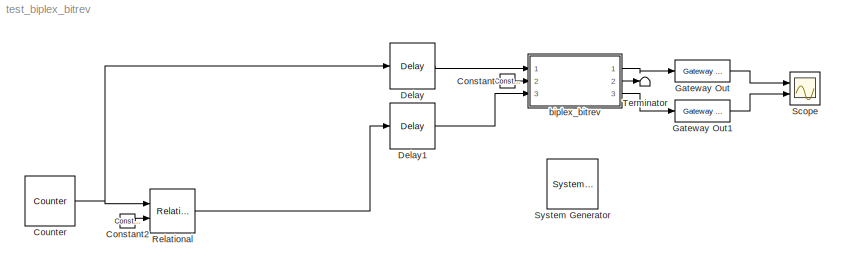
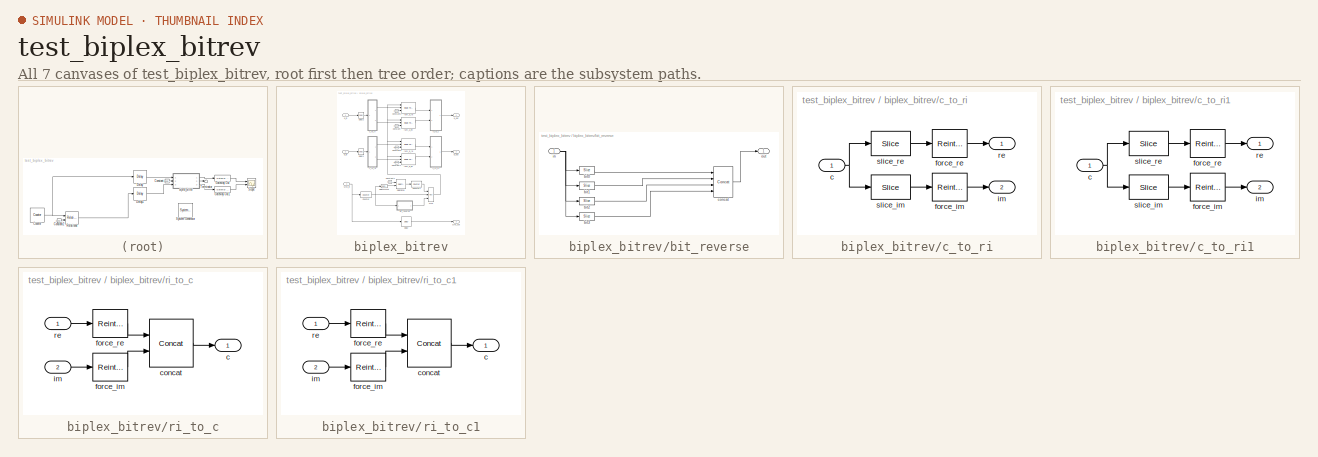
[diagram: thumbnail index - all 7 canvases of the model, root first then tree order]
MODEL test_biplex_bitrev
KIND model
BLOCK [Reference]  System Generator  REF=xbsIndex_r3/ System Generator
  AttributesFormatString = System\\nGenerator
  Ports = []
  ShowPortLabels = on
  SourceBlock = xbsIndex_r3/ System Generator
  SourceType = Xilinx System Generator
  Tag = genX
  UserData = DataTag0
  UserDataPersistent = on
  core_generation = According to Block Masks
  dbl_ovrd = According to Block Masks
  deprecated_control = off
  directory = ./netlist
  eval_field = 0
  incr_netlist = off
  package = bg575
  part = xc2v1000
  run_coregen = off
  simulink_period = 1
  speed = -4
  synthesis_tool = XST
  sysclk_period = 100
  testbench = off
  trim_vbits = Everywhere in SubSystem
  xilinxfamily = Virtex2
BLOCK [Reference] Constant  REF=xbsIndex_r3/Constant
  Ports = [0, 1]
  SourceBlock = xbsIndex_r3/Constant
  SourceType = Xilinx Constant Block
  arith_type = Unsigned
  bin_pt = 0
  carry = CIN
  const = 0
  dbl_ovrd = off
  equ = P=C
  explicit_period = on
  inp1 = P
  inp2 = PCIN>>17
  iostate = 0
  n_bits = 8
  opr = +
  opselect = C
  period = 1
BLOCK [Reference] Constant2  REF=xbsIndex_r3/Constant
  Ports = [0, 1]
  SourceBlock = xbsIndex_r3/Constant
  SourceType = Xilinx Constant Block
  arith_type = Unsigned
  bin_pt = 0
  carry = CIN
  const = 0
  dbl_ovrd = off
  equ = P=C
  explicit_period = on
  inp1 = P
  inp2 = PCIN>>17
  iostate = 0
  n_bits = 8
  opr = +
  opselect = C
  period = 1
BLOCK [Reference] Counter  REF=xbsIndex_r3/Counter
  Ports = [0, 1]
  SourceBlock = xbsIndex_r3/Counter
  SourceType = Xilinx Counter Block
  arith_type = Unsigned
  bin_pt = 0
  cnt_by_val = 1
  cnt_to = 15
  cnt_type = Count Limited
  dbl_ovrd = off
  en = off
  explicit_period = off
  gen_core = off
  load_pin = off
  n_bits = 8
  operation = Up
  period = 1
  rst = off
  show_param = off
  start_count = 0
  use_rpm = on
  xl_area = [0, 0, 0, 0, 0, 0, 0]
  xl_use_area = off
BLOCK [Reference] Delay  REF=xbsIndex_r3/Delay
  Ports = [1, 1]
  SourceBlock = xbsIndex_r3/Delay
  SourceType = Xilinx Delay Block
  accept_only_valid = off
  dbl_ovrd = off
  en = off
  explicit_period = off
  init_zero = on
  latency = 1
  period = 1
  reg_retiming = off
  show_param = off
  xl_area = [0, 0, 0, 0, 0, 0, 0]
  xl_use_area = off
BLOCK [Reference] Delay1  REF=xbsIndex_r3/Delay
  Ports = [1, 1]
  SourceBlock = xbsIndex_r3/Delay
  SourceType = Xilinx Delay Block
  accept_only_valid = off
  dbl_ovrd = off
  en = off
  explicit_period = off
  init_zero = on
  latency = 0
  period = 1
  reg_retiming = off
  show_param = off
  xl_area = [0, 0, 0, 0, 0, 0, 0]
  xl_use_area = off
BLOCK [Reference] Gateway Out  REF=xbsIndex_r3/Gateway Out
  LOCs = {}
  Ports = [1, 1]
  SourceBlock = xbsIndex_r3/Gateway Out
  SourceType = Xilinx Gateway Out
  arith_type = Boolean
  bin_pt = 6
  hdl_port = on
  locs_specified = off
  nbits = 8
  needs_fixed_name = off
  output_type = Double
  overflow = Wrap
  quantization = Truncate
  show_param = off
  timing_constraint = None
  xl_area = [0, 0, 0, 0, 0, 0, 0]
  xl_use_area = off
BLOCK [Reference] Gateway Out1  REF=xbsIndex_r3/Gateway Out
  LOCs = {}
  Ports = [1, 1]
  SourceBlock = xbsIndex_r3/Gateway Out
  SourceType = Xilinx Gateway Out
  arith_type = Boolean
  bin_pt = 6
  hdl_port = on
  locs_specified = off
  nbits = 8
  needs_fixed_name = off
  output_type = Double
  overflow = Wrap
  quantization = Truncate
  show_param = off
  timing_constraint = None
  xl_area = [0, 0, 0, 0, 0, 0, 0]
  xl_use_area = off
BLOCK [Reference] Relational  REF=xbsIndex_r3/Relational
  Ports = [2, 1]
  SourceBlock = xbsIndex_r3/Relational
  SourceType = Xilinx Relational Block
  dbl_ovrd = off
  en = off
  explicit_period = off
  latency = 0
  mode = a=b
  period = 1
  show_param = off
  xl_area = [0, 0, 0, 0, 0, 0, 0]
  xl_use_area = off
BLOCK [Scope] Scope
  DataFormat = StructureWithTime
  NumInputPorts = 2
  Ports = [2]
  YMax = 7~5
  YMin = 0~-5
BLOCK [Terminator] Terminator
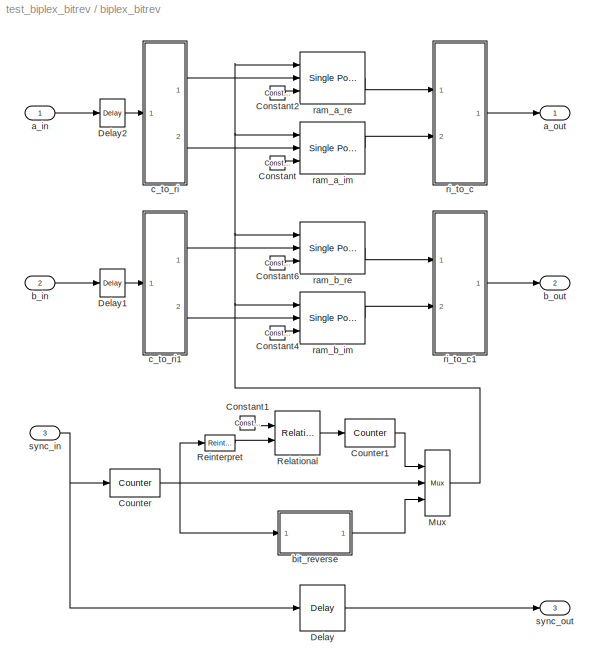
BLOCK [SubSystem] biplex_bitrev
  AttributesFormatString = size = 16
  MaskCallbackString = |
  MaskDescription = Reorders the input sequence from normal order to bit reverse order (or vise versa).
  MaskEnableString = on,on
  MaskHelp = <pre>\nDescription::\n\nReorders the input sequence from normal order to bit reverse order (or vise versa).\n\nMask Parameters::\n\nLog 2 Block Size (log2_size): The base-2 logarithm of the length of one complete input block.\nThis MUST be an integer because the current implementation requires that\nthe input block size MUST be a power of 2.  (aka \"N\")\n\nNumber of Bits (n_bits): Specifies the w...<+89ch>
  MaskIconFrame = on
  MaskIconOpaque = on
  MaskIconRotate = none
  MaskIconUnits = autoscale
  MaskInitialization = biplex_bitrev_init(gcb,log2_size,n_bits);\n
  MaskPromptString = Log2 Block Size|Number of Bits
  MaskSelfModifiable = on
  MaskStyleString = edit,edit
  MaskTabNameString = ,
  MaskToolTipString = on,on
  MaskTunableValueString = on,on
  MaskType = Biplex Bit Reverse Reorder
  MaskValueString = 4|4
  MaskVarAliasString = ,
  MaskVariables = log2_size=@1;n_bits=@2;
  MaskVisibilityString = on,on
  MinAlgLoopOccurrences = off
  Ports = [3, 3]
  RTWSystemCode = Auto
  TreatAsAtomicUnit = off
  UserData = DataTag1
  UserDataPersistent = on
BLOCK [Reference] biplex_bitrev/Constant  REF=xbsIndex_r3/Constant
  Ports = [0, 1]
  SourceBlock = xbsIndex_r3/Constant
  SourceType = Xilinx Constant Block
  arith_type = Boolean
  bin_pt = 0
  carry = CIN
  const = 1
  dbl_ovrd = off
  equ = P=C
  explicit_period = on
  inp1 = P
  inp2 = PCIN>>17
  iostate = 0
  n_bits = 1
  opr = +
  opselect = C
  period = 1
BLOCK [Reference] biplex_bitrev/Constant1  REF=xbsIndex_r3/Constant
  Ports = [0, 1]
  SourceBlock = xbsIndex_r3/Constant
  SourceType = Xilinx Constant Block
  arith_type = Signed  (2's comp)
  bin_pt = 0
  carry = CIN
  const = -1
  dbl_ovrd = off
  equ = P=C
  explicit_period = on
  inp1 = P
  inp2 = PCIN>>17
  iostate = 0
  n_bits = 1
  opr = +
  opselect = C
  period = 1
BLOCK [Reference] biplex_bitrev/Constant2  REF=xbsIndex_r3/Constant
  Ports = [0, 1]
  SourceBlock = xbsIndex_r3/Constant
  SourceType = Xilinx Constant Block
  arith_type = Boolean
  bin_pt = 0
  carry = CIN
  const = 1
  dbl_ovrd = off
  equ = P=C
  explicit_period = on
  inp1 = P
  inp2 = PCIN>>17
  iostate = 0
  n_bits = 1
  opr = +
  opselect = C
  period = 1
BLOCK [Reference] biplex_bitrev/Constant4  REF=xbsIndex_r3/Constant
  Ports = [0, 1]
  SourceBlock = xbsIndex_r3/Constant
  SourceType = Xilinx Constant Block
  arith_type = Boolean
  bin_pt = 0
  carry = CIN
  const = 1
  dbl_ovrd = off
  equ = P=C
  explicit_period = on
  inp1 = P
  inp2 = PCIN>>17
  iostate = 0
  n_bits = 1
  opr = +
  opselect = C
  period = 1
BLOCK [Reference] biplex_bitrev/Constant6  REF=xbsIndex_r3/Constant
  Ports = [0, 1]
  SourceBlock = xbsIndex_r3/Constant
  SourceType = Xilinx Constant Block
  arith_type = Boolean
  bin_pt = 0
  carry = CIN
  const = 1
  dbl_ovrd = off
  equ = P=C
  explicit_period = on
  inp1 = P
  inp2 = PCIN>>17
  iostate = 0
  n_bits = 1
  opr = +
  opselect = C
  period = 1
BLOCK [Reference] biplex_bitrev/Counter  REF=xbsIndex_r3/Counter
  Ports = [1, 1]
  SourceBlock = xbsIndex_r3/Counter
  SourceType = Xilinx Counter Block
  arith_type = Unsigned
  bin_pt = 0
  cnt_by_val = 1
  cnt_to = Inf
  cnt_type = Free Running
  dbl_ovrd = off
  en = off
  explicit_period = off
  gen_core = off
  load_pin = off
  n_bits = 4
  operation = Up
  period = 1
  rst = on
  show_param = off
  start_count = 0
  use_rpm = on
  xl_area = [0, 0, 0, 0, 0, 0, 0]
  xl_use_area = off
BLOCK [Reference] biplex_bitrev/Counter1  REF=xbsIndex_r3/Counter
  Ports = [1, 1]
  SourceBlock = xbsIndex_r3/Counter
  SourceType = Xilinx Counter Block
  arith_type = Unsigned
  bin_pt = 0
  cnt_by_val = 1
  cnt_to = Inf
  cnt_type = Free Running
  dbl_ovrd = off
  en = on
  explicit_period = off
  gen_core = off
  load_pin = off
  n_bits = 1
  operation = Up
  period = 1
  rst = off
  show_param = off
  start_count = 0
  use_rpm = on
  xl_area = [0, 0, 0, 0, 0, 0, 0]
  xl_use_area = off
BLOCK [Reference] biplex_bitrev/Delay  REF=xbsIndex_r3/Delay
  Ports = [1, 1]
  SourceBlock = xbsIndex_r3/Delay
  SourceType = Xilinx Delay Block
  accept_only_valid = off
  dbl_ovrd = off
  en = off
  explicit_period = off
  init_zero = on
  latency = 18
  period = 1
  reg_retiming = off
  show_param = off
  xl_area = [0, 0, 0, 0, 0, 0, 0]
  xl_use_area = off
BLOCK [Reference] biplex_bitrev/Delay1  REF=xbsIndex_r3/Delay
  Ports = [1, 1]
  SourceBlock = xbsIndex_r3/Delay
  SourceType = Xilinx Delay Block
  accept_only_valid = off
  dbl_ovrd = off
  en = off
  explicit_period = off
  init_zero = on
  latency = 1
  period = 1
  reg_retiming = off
  show_param = off
  xl_area = [0, 0, 0, 0, 0, 0, 0]
  xl_use_area = off
BLOCK [Reference] biplex_bitrev/Delay2  REF=xbsIndex_r3/Delay
  Ports = [1, 1]
  SourceBlock = xbsIndex_r3/Delay
  SourceType = Xilinx Delay Block
  accept_only_valid = off
  dbl_ovrd = off
  en = off
  explicit_period = off
  init_zero = on
  latency = 1
  period = 1
  reg_retiming = off
  show_param = off
  xl_area = [0, 0, 0, 0, 0, 0, 0]
  xl_use_area = off
BLOCK [Reference] biplex_bitrev/Mux  REF=xbsIndex_r3/Mux
  Ports = [3, 1]
  SourceBlock = xbsIndex_r3/Mux
  SourceType = Xilinx Multiplexer Block
  arith_type = Signed  (2's comp)
  bin_pt = 2
  dbl_ovrd = off
  en = off
  explicit_period = off
  gen_core = off
  inputs = 2
  latency = 1
  mux_type = off
  n_bits = 8
  overflow = Wrap
  period = 1
  precision = Full
  quantization = Truncate
  show_param = off
  use_rpm = off
  xl_area = [0, 0, 0, 0, 0, 0, 0]
  xl_use_area = off
BLOCK [Reference] biplex_bitrev/Reinterpret  REF=xbsIndex_r3/Reinterpret
  Ports = [1, 1]
  SourceBlock = xbsIndex_r3/Reinterpret
  SourceType = Xilinx Type Reinterpreting Block
  arith_type = Signed  (2's comp)
  bin_pt = 0
  force_arith_type = on
  force_bin_pt = off
  force_valid = on
BLOCK [Reference] biplex_bitrev/Relational  REF=xbsIndex_r3/Relational
  Ports = [2, 1]
  SourceBlock = xbsIndex_r3/Relational
  SourceType = Xilinx Relational Block
  dbl_ovrd = off
  en = off
  explicit_period = off
  latency = 1
  mode = a=b
  period = 1
  show_param = off
  xl_area = [0, 0, 0, 0, 0, 0, 0]
  xl_use_area = off
BLOCK [Inport] biplex_bitrev/a_in
  IconDisplay = Port number
  LatchInput = off
  Port = 1
BLOCK [Outport] biplex_bitrev/a_out
  BusOutputAsStruct = off
  IconDisplay = Port number
BLOCK [Inport] biplex_bitrev/b_in
  IconDisplay = Port number
  LatchInput = off
  Port = 2
BLOCK [Outport] biplex_bitrev/b_out
  BusOutputAsStruct = off
  IconDisplay = Port number
  Port = 2
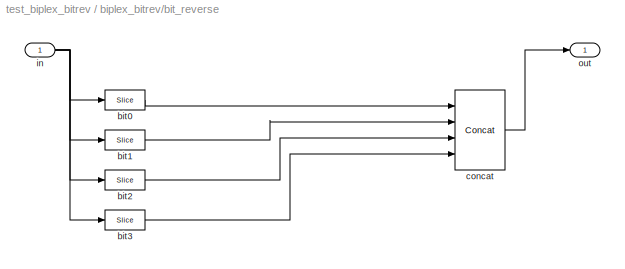
BLOCK [SubSystem] biplex_bitrev/bit_reverse
  AttributesFormatString = 4 bits
  MaskDescription = Reverses the bit order of the input.  Input must be unsigned with binary point at position 0.  Costs nothing in hardware.
  MaskEnableString = on
  MaskHelp = <pre>\nDescription::\n\nReverses the bit order of the input.\n\nInput must be unsigned with binary point at position 0.\n\nCosts nothing in hardware.\n\nMask Parameters::\n\nNumber of Bits (n_bits): Specifies the width of the input.\n</pre>
  MaskIconFrame = on
  MaskIconOpaque = on
  MaskIconRotate = none
  MaskIconUnits = autoscale
  MaskPromptString = Number of Bits
  MaskSelfModifiable = on
  MaskStyleString = edit
  MaskToolTipString = on
  MaskTunableValueString = on
  MaskType = Bit Reversal
  MaskValueString = 4
  MaskVariables = n_bits=@1;
  MaskVisibilityString = on
  MinAlgLoopOccurrences = off
  Ports = [1, 1]
  RTWSystemCode = Auto
  TreatAsAtomicUnit = off
  UserData = DataTag2
  UserDataPersistent = on
BLOCK [Reference] biplex_bitrev/bit_reverse/bit0  REF=xbsIndex_r3/Slice
  Ports = [1, 1]
  SourceBlock = xbsIndex_r3/Slice
  SourceType = Xilinx Slice Block
  base0 = LSB of Input
  base1 = MSB of Input
  bit0 = 0
  bit1 = 0
  boolean_output = off
  dbl_ovrd = off
  explicit_period = off
  mode = Lower Bit Location + Width
  nbits = 1
  period = 1
BLOCK [Reference] biplex_bitrev/bit_reverse/bit1  REF=xbsIndex_r3/Slice
  Ports = [1, 1]
  SourceBlock = xbsIndex_r3/Slice
  SourceType = Xilinx Slice Block
  base0 = LSB of Input
  base1 = MSB of Input
  bit0 = 1
  bit1 = 0
  boolean_output = off
  dbl_ovrd = off
  explicit_period = off
  mode = Lower Bit Location + Width
  nbits = 1
  period = 1
BLOCK [Reference] biplex_bitrev/bit_reverse/bit2  REF=xbsIndex_r3/Slice
  Ports = [1, 1]
  SourceBlock = xbsIndex_r3/Slice
  SourceType = Xilinx Slice Block
  base0 = LSB of Input
  base1 = MSB of Input
  bit0 = 2
  bit1 = 0
  boolean_output = off
  dbl_ovrd = off
  explicit_period = off
  mode = Lower Bit Location + Width
  nbits = 1
  period = 1
BLOCK [Reference] biplex_bitrev/bit_reverse/bit3  REF=xbsIndex_r3/Slice
  Ports = [1, 1]
  SourceBlock = xbsIndex_r3/Slice
  SourceType = Xilinx Slice Block
  base0 = LSB of Input
  base1 = MSB of Input
  bit0 = 3
  bit1 = 0
  boolean_output = off
  dbl_ovrd = off
  explicit_period = off
  mode = Lower Bit Location + Width
  nbits = 1
  period = 1
BLOCK [Reference] biplex_bitrev/bit_reverse/concat  REF=xbsIndex_r3/Concat
  Ports = [4, 1]
  SourceBlock = xbsIndex_r3/Concat
  SourceType = Xilinx Bus Concatenator
  dbl_ovrd = off
  explicit_period = off
  num_inputs = 4
  period = 1
BLOCK [Inport] biplex_bitrev/bit_reverse/in
  IconDisplay = Port number
  LatchInput = off
  Port = 1
BLOCK [Outport] biplex_bitrev/bit_reverse/out
  BusOutputAsStruct = off
  IconDisplay = Port number
BLOCK [SubSystem] biplex_bitrev/c_to_ri
  AttributesFormatString = %<n_bits>_%<bin_pt> r/i
  MaskCallbackString = |
  MaskDescription = Outputs real and imaginary components of a complex input.
  MaskEnableString = on,on
  MaskHelp = <pre>\nDescription::\n\nOutputs real and imaginary components of a complex input.\nUseful for simplifying interconnects.\nSee also: Real-Imag to Complex (ri_to_c)\n\nMask Parameters::\n\nBit Width (n_bits): Specifies the width of the real/imaginary components.\nAssumed equal for both components.\n\nBinary Point (bin_pt): Specifies the binary point location in the real/imaginary components.\nAssume...<+36ch>
  MaskIconFrame = on
  MaskIconOpaque = on
  MaskIconRotate = none
  MaskIconUnits = autoscale
  MaskInitialization = c_to_ri_init(gcb,n_bits,bin_pt);
  MaskPromptString = Bit Width|Binary Point
  MaskSelfModifiable = on
  MaskStyleString = edit,edit
  MaskTabNameString = ,
  MaskToolTipString = on,on
  MaskTunableValueString = on,on
  MaskType = Complex to Real-Imag
  MaskValueString = 4|0
  MaskVarAliasString = ,
  MaskVariables = n_bits=@1;bin_pt=@2;
  MaskVisibilityString = on,on
  MinAlgLoopOccurrences = off
  Ports = [1, 2]
  RTWSystemCode = Auto
  TreatAsAtomicUnit = off
  UserData = DataTag3
  UserDataPersistent = on
BLOCK [Inport] biplex_bitrev/c_to_ri/c
  IconDisplay = Port number
  LatchInput = off
  Port = 1
BLOCK [Reference] biplex_bitrev/c_to_ri/force_im  REF=xbsIndex_r3/Reinterpret
  Ports = [1, 1]
  SourceBlock = xbsIndex_r3/Reinterpret
  SourceType = Xilinx Type Reinterpreting Block
  arith_type = Signed  (2's comp)
  bin_pt = 0
  force_arith_type = on
  force_bin_pt = on
  force_valid = on
BLOCK [Reference] biplex_bitrev/c_to_ri/force_re  REF=xbsIndex_r3/Reinterpret
  Ports = [1, 1]
  SourceBlock = xbsIndex_r3/Reinterpret
  SourceType = Xilinx Type Reinterpreting Block
  arith_type = Signed  (2's comp)
  bin_pt = 0
  force_arith_type = on
  force_bin_pt = on
  force_valid = on
BLOCK [Outport] biplex_bitrev/c_to_ri/im
  BusOutputAsStruct = off
  IconDisplay = Port number
  Port = 2
BLOCK [Outport] biplex_bitrev/c_to_ri/re
  BusOutputAsStruct = off
  IconDisplay = Port number
BLOCK [Reference] biplex_bitrev/c_to_ri/slice_im  REF=xbsIndex_r3/Slice
  Ports = [1, 1]
  SourceBlock = xbsIndex_r3/Slice
  SourceType = Xilinx Slice Block
  base0 = LSB of Input
  base1 = MSB of Input
  bit0 = 0
  bit1 = 0
  boolean_output = off
  dbl_ovrd = off
  explicit_period = off
  mode = Lower Bit Location + Width
  nbits = 4
  period = 1
BLOCK [Reference] biplex_bitrev/c_to_ri/slice_re  REF=xbsIndex_r3/Slice
  Ports = [1, 1]
  SourceBlock = xbsIndex_r3/Slice
  SourceType = Xilinx Slice Block
  base0 = LSB of Input
  base1 = MSB of Input
  bit0 = 0
  bit1 = 0
  boolean_output = off
  dbl_ovrd = off
  explicit_period = off
  mode = Upper Bit Location + Width
  nbits = 4
  period = 1
BLOCK [SubSystem] biplex_bitrev/c_to_ri1
  AttributesFormatString = %<n_bits>_%<bin_pt> r/i
  MaskCallbackString = |
  MaskDescription = Outputs real and imaginary components of a complex input.
  MaskEnableString = on,on
  MaskHelp = <pre>\nDescription::\n\nOutputs real and imaginary components of a complex input.\nUseful for simplifying interconnects.\nSee also: Real-Imag to Complex (ri_to_c)\n\nMask Parameters::\n\nBit Width (n_bits): Specifies the width of the real/imaginary components.\nAssumed equal for both components.\n\nBinary Point (bin_pt): Specifies the binary point location in the real/imaginary components.\nAssume...<+36ch>
  MaskIconFrame = on
  MaskIconOpaque = on
  MaskIconRotate = none
  MaskIconUnits = autoscale
  MaskInitialization = c_to_ri_init(gcb,n_bits,bin_pt);
  MaskPromptString = Bit Width|Binary Point
  MaskSelfModifiable = on
  MaskStyleString = edit,edit
  MaskTabNameString = ,
  MaskToolTipString = on,on
  MaskTunableValueString = on,on
  MaskType = Complex to Real-Imag
  MaskValueString = 4|0
  MaskVarAliasString = ,
  MaskVariables = n_bits=@1;bin_pt=@2;
  MaskVisibilityString = on,on
  MinAlgLoopOccurrences = off
  Ports = [1, 2]
  RTWSystemCode = Auto
  TreatAsAtomicUnit = off
  UserData = DataTag4
  UserDataPersistent = on
BLOCK [Inport] biplex_bitrev/c_to_ri1/c
  IconDisplay = Port number
  LatchInput = off
  Port = 1
BLOCK [Reference] biplex_bitrev/c_to_ri1/force_im  REF=xbsIndex_r3/Reinterpret
  Ports = [1, 1]
  SourceBlock = xbsIndex_r3/Reinterpret
  SourceType = Xilinx Type Reinterpreting Block
  arith_type = Signed  (2's comp)
  bin_pt = 0
  force_arith_type = on
  force_bin_pt = on
  force_valid = on
BLOCK [Reference] biplex_bitrev/c_to_ri1/force_re  REF=xbsIndex_r3/Reinterpret
  Ports = [1, 1]
  SourceBlock = xbsIndex_r3/Reinterpret
  SourceType = Xilinx Type Reinterpreting Block
  arith_type = Signed  (2's comp)
  bin_pt = 0
  force_arith_type = on
  force_bin_pt = on
  force_valid = on
BLOCK [Outport] biplex_bitrev/c_to_ri1/im
  BusOutputAsStruct = off
  IconDisplay = Port number
  Port = 2
BLOCK [Outport] biplex_bitrev/c_to_ri1/re
  BusOutputAsStruct = off
  IconDisplay = Port number
BLOCK [Reference] biplex_bitrev/c_to_ri1/slice_im  REF=xbsIndex_r3/Slice
  Ports = [1, 1]
  SourceBlock = xbsIndex_r3/Slice
  SourceType = Xilinx Slice Block
  base0 = LSB of Input
  base1 = MSB of Input
  bit0 = 0
  bit1 = 0
  boolean_output = off
  dbl_ovrd = off
  explicit_period = off
  mode = Lower Bit Location + Width
  nbits = 4
  period = 1
BLOCK [Reference] biplex_bitrev/c_to_ri1/slice_re  REF=xbsIndex_r3/Slice
  Ports = [1, 1]
  SourceBlock = xbsIndex_r3/Slice
  SourceType = Xilinx Slice Block
  base0 = LSB of Input
  base1 = MSB of Input
  bit0 = 0
  bit1 = 0
  boolean_output = off
  dbl_ovrd = off
  explicit_period = off
  mode = Upper Bit Location + Width
  nbits = 4
  period = 1
BLOCK [Reference] biplex_bitrev/ram_a_im  REF=xbsIndex_r3/Single Port RAM
  Ports = [3, 1]
  SourceBlock = xbsIndex_r3/Single Port RAM
  SourceType = Xilinx Single Port Random Access Memory
  dbl_ovrd = off
  depth = 16
  distributed_mem = off
  en = off
  explicit_period = off
  gen_core = off
  initVector = 0
  init_reg = 0
  init_zero = on
  latency = 1
  period = 1
  rst = off
  show_param = on
  use_rpm = off
  write_mode = Read Before Write
  xl_area = [0, 0, 0, 0, 0, 0, 0]
  xl_use_area = off
BLOCK [Reference] biplex_bitrev/ram_a_re  REF=xbsIndex_r3/Single Port RAM
  Ports = [3, 1]
  SourceBlock = xbsIndex_r3/Single Port RAM
  SourceType = Xilinx Single Port Random Access Memory
  dbl_ovrd = off
  depth = 16
  distributed_mem = off
  en = off
  explicit_period = off
  gen_core = off
  initVector = 0
  init_reg = 0
  init_zero = on
  latency = 1
  period = 1
  rst = off
  show_param = on
  use_rpm = off
  write_mode = Read Before Write
  xl_area = [0, 0, 0, 0, 0, 0, 0]
  xl_use_area = off
BLOCK [Reference] biplex_bitrev/ram_b_im  REF=xbsIndex_r3/Single Port RAM
  Ports = [3, 1]
  SourceBlock = xbsIndex_r3/Single Port RAM
  SourceType = Xilinx Single Port Random Access Memory
  dbl_ovrd = off
  depth = 16
  distributed_mem = off
  en = off
  explicit_period = off
  gen_core = off
  initVector = 0
  init_reg = 0
  init_zero = on
  latency = 1
  period = 1
  rst = off
  show_param = on
  use_rpm = off
  write_mode = Read Before Write
  xl_area = [0, 0, 0, 0, 0, 0, 0]
  xl_use_area = off
BLOCK [Reference] biplex_bitrev/ram_b_re  REF=xbsIndex_r3/Single Port RAM
  Ports = [3, 1]
  SourceBlock = xbsIndex_r3/Single Port RAM
  SourceType = Xilinx Single Port Random Access Memory
  dbl_ovrd = off
  depth = 16
  distributed_mem = off
  en = off
  explicit_period = off
  gen_core = off
  initVector = 0
  init_reg = 0
  init_zero = on
  latency = 1
  period = 1
  rst = off
  show_param = on
  use_rpm = off
  write_mode = Read Before Write
  xl_area = [0, 0, 0, 0, 0, 0, 0]
  xl_use_area = off
BLOCK [SubSystem] biplex_bitrev/ri_to_c
  MaskDescription = Concatenates real and imaginary inputs into a complex output.
  MaskHelp = <pre>\nDescription::\n\nConcatenates a real and imaginary input into a complex output.\nUseful for simplifying interconnects.\nSee also: Complex to Real-Imag (c_to_ri)\n\nMask Parameters::\n\n(N/A)\n</pre>
  MaskIconFrame = on
  MaskIconOpaque = on
  MaskIconRotate = none
  MaskIconUnits = autoscale
  MaskInitialization = ri_to_c_init(gcb);
  MaskSelfModifiable = on
  MaskType = Real-Imag to Complex
  MinAlgLoopOccurrences = off
  Ports = [2, 1]
  RTWSystemCode = Auto
  TreatAsAtomicUnit = off
  UserData = DataTag5
  UserDataPersistent = on
BLOCK [Outport] biplex_bitrev/ri_to_c/c
  BusOutputAsStruct = off
  IconDisplay = Port number
BLOCK [Reference] biplex_bitrev/ri_to_c/concat  REF=xbsIndex_r3/Concat
  Ports = [2, 1]
  SourceBlock = xbsIndex_r3/Concat
  SourceType = Xilinx Bus Concatenator
  dbl_ovrd = off
  explicit_period = off
  num_inputs = 2
  period = 1
BLOCK [Reference] biplex_bitrev/ri_to_c/force_im  REF=xbsIndex_r3/Reinterpret
  Ports = [1, 1]
  SourceBlock = xbsIndex_r3/Reinterpret
  SourceType = Xilinx Type Reinterpreting Block
  arith_type = Unsigned
  bin_pt = 0
  force_arith_type = on
  force_bin_pt = on
  force_valid = on
BLOCK [Reference] biplex_bitrev/ri_to_c/force_re  REF=xbsIndex_r3/Reinterpret
  Ports = [1, 1]
  SourceBlock = xbsIndex_r3/Reinterpret
  SourceType = Xilinx Type Reinterpreting Block
  arith_type = Unsigned
  bin_pt = 0
  force_arith_type = on
  force_bin_pt = on
  force_valid = on
BLOCK [Inport] biplex_bitrev/ri_to_c/im
  IconDisplay = Port number
  LatchInput = off
  Port = 2
BLOCK [Inport] biplex_bitrev/ri_to_c/re
  IconDisplay = Port number
  LatchInput = off
  Port = 1
BLOCK [SubSystem] biplex_bitrev/ri_to_c1
  MaskDescription = Concatenates real and imaginary inputs into a complex output.
  MaskHelp = <pre>\nDescription::\n\nConcatenates a real and imaginary input into a complex output.\nUseful for simplifying interconnects.\nSee also: Complex to Real-Imag (c_to_ri)\n\nMask Parameters::\n\n(N/A)\n</pre>
  MaskIconFrame = on
  MaskIconOpaque = on
  MaskIconRotate = none
  MaskIconUnits = autoscale
  MaskInitialization = ri_to_c_init(gcb);
  MaskSelfModifiable = on
  MaskType = Real-Imag to Complex
  MinAlgLoopOccurrences = off
  Ports = [2, 1]
  RTWSystemCode = Auto
  TreatAsAtomicUnit = off
  UserData = DataTag6
  UserDataPersistent = on
BLOCK [Outport] biplex_bitrev/ri_to_c1/c
  BusOutputAsStruct = off
  IconDisplay = Port number
BLOCK [Reference] biplex_bitrev/ri_to_c1/concat  REF=xbsIndex_r3/Concat
  Ports = [2, 1]
  SourceBlock = xbsIndex_r3/Concat
  SourceType = Xilinx Bus Concatenator
  dbl_ovrd = off
  explicit_period = off
  num_inputs = 2
  period = 1
BLOCK [Reference] biplex_bitrev/ri_to_c1/force_im  REF=xbsIndex_r3/Reinterpret
  Ports = [1, 1]
  SourceBlock = xbsIndex_r3/Reinterpret
  SourceType = Xilinx Type Reinterpreting Block
  arith_type = Unsigned
  bin_pt = 0
  force_arith_type = on
  force_bin_pt = on
  force_valid = on
BLOCK [Reference] biplex_bitrev/ri_to_c1/force_re  REF=xbsIndex_r3/Reinterpret
  Ports = [1, 1]
  SourceBlock = xbsIndex_r3/Reinterpret
  SourceType = Xilinx Type Reinterpreting Block
  arith_type = Unsigned
  bin_pt = 0
  force_arith_type = on
  force_bin_pt = on
  force_valid = on
BLOCK [Inport] biplex_bitrev/ri_to_c1/im
  IconDisplay = Port number
  LatchInput = off
  Port = 2
BLOCK [Inport] biplex_bitrev/ri_to_c1/re
  IconDisplay = Port number
  LatchInput = off
  Port = 1
BLOCK [Inport] biplex_bitrev/sync_in
  IconDisplay = Port number
  LatchInput = off
  Port = 3
BLOCK [Outport] biplex_bitrev/sync_out
  BusOutputAsStruct = off
  IconDisplay = Port number
  Port = 3
LINE Constant2:1 -> Relational:2
LINE Constant:1 -> biplex_bitrev:2
NET Counter:1 -> Delay:1, Relational:1
LINE Delay1:1 -> biplex_bitrev:3
LINE Delay:1 -> biplex_bitrev:1
LINE Gateway Out1:1 -> Scope:2
LINE Gateway Out:1 -> Scope:1
LINE Relational:1 -> Delay1:1
LINE biplex_bitrev/Constant1:1 -> biplex_bitrev/Relational:1
LINE biplex_bitrev/Constant2:1 -> biplex_bitrev/ram_a_re:3
LINE biplex_bitrev/Constant4:1 -> biplex_bitrev/ram_b_im:3
LINE biplex_bitrev/Constant6:1 -> biplex_bitrev/ram_b_re:3
LINE biplex_bitrev/Constant:1 -> biplex_bitrev/ram_a_im:3
LINE biplex_bitrev/Counter1:1 -> biplex_bitrev/Mux:1
NET biplex_bitrev/Counter:1 -> biplex_bitrev/Mux:2, biplex_bitrev/Reinterpret:1, biplex_bitrev/bit_reverse:1
LINE biplex_bitrev/Delay1:1 -> biplex_bitrev/c_to_ri1:1
LINE biplex_bitrev/Delay2:1 -> biplex_bitrev/c_to_ri:1
LINE biplex_bitrev/Delay:1 -> biplex_bitrev/sync_out:1
NET biplex_bitrev/Mux:1 -> biplex_bitrev/ram_a_im:1, biplex_bitrev/ram_a_re:1, biplex_bitrev/ram_b_im:1, biplex_bitrev/ram_b_re:1
LINE biplex_bitrev/Reinterpret:1 -> biplex_bitrev/Relational:2
LINE biplex_bitrev/Relational:1 -> biplex_bitrev/Counter1:1
LINE biplex_bitrev/a_in:1 -> biplex_bitrev/Delay2:1
LINE biplex_bitrev/b_in:1 -> biplex_bitrev/Delay1:1
LINE biplex_bitrev/bit_reverse/bit0:1 -> biplex_bitrev/bit_reverse/concat:1
LINE biplex_bitrev/bit_reverse/bit1:1 -> biplex_bitrev/bit_reverse/concat:2
LINE biplex_bitrev/bit_reverse/bit2:1 -> biplex_bitrev/bit_reverse/concat:3
LINE biplex_bitrev/bit_reverse/bit3:1 -> biplex_bitrev/bit_reverse/concat:4
LINE biplex_bitrev/bit_reverse/concat:1 -> biplex_bitrev/bit_reverse/out:1
NET biplex_bitrev/bit_reverse/in:1 -> biplex_bitrev/bit_reverse/bit0:1, biplex_bitrev/bit_reverse/bit1:1, biplex_bitrev/bit_reverse/bit2:1, biplex_bitrev/bit_reverse/bit3:1
LINE biplex_bitrev/bit_reverse:1 -> biplex_bitrev/Mux:3
NET biplex_bitrev/c_to_ri/c:1 -> biplex_bitrev/c_to_ri/slice_im:1, biplex_bitrev/c_to_ri/slice_re:1
LINE biplex_bitrev/c_to_ri/force_im:1 -> biplex_bitrev/c_to_ri/im:1
LINE biplex_bitrev/c_to_ri/force_re:1 -> biplex_bitrev/c_to_ri/re:1
LINE biplex_bitrev/c_to_ri/slice_im:1 -> biplex_bitrev/c_to_ri/force_im:1
LINE biplex_bitrev/c_to_ri/slice_re:1 -> biplex_bitrev/c_to_ri/force_re:1
NET biplex_bitrev/c_to_ri1/c:1 -> biplex_bitrev/c_to_ri1/slice_im:1, biplex_bitrev/c_to_ri1/slice_re:1
LINE biplex_bitrev/c_to_ri1/force_im:1 -> biplex_bitrev/c_to_ri1/im:1
LINE biplex_bitrev/c_to_ri1/force_re:1 -> biplex_bitrev/c_to_ri1/re:1
LINE biplex_bitrev/c_to_ri1/slice_im:1 -> biplex_bitrev/c_to_ri1/force_im:1
LINE biplex_bitrev/c_to_ri1/slice_re:1 -> biplex_bitrev/c_to_ri1/force_re:1
LINE biplex_bitrev/c_to_ri1:1 -> biplex_bitrev/ram_b_re:2
LINE biplex_bitrev/c_to_ri1:2 -> biplex_bitrev/ram_b_im:2
LINE biplex_bitrev/c_to_ri:1 -> biplex_bitrev/ram_a_re:2
LINE biplex_bitrev/c_to_ri:2 -> biplex_bitrev/ram_a_im:2
LINE biplex_bitrev/ram_a_im:1 -> biplex_bitrev/ri_to_c:2
LINE biplex_bitrev/ram_a_re:1 -> biplex_bitrev/ri_to_c:1
LINE biplex_bitrev/ram_b_im:1 -> biplex_bitrev/ri_to_c1:2
LINE biplex_bitrev/ram_b_re:1 -> biplex_bitrev/ri_to_c1:1
LINE biplex_bitrev/ri_to_c/concat:1 -> biplex_bitrev/ri_to_c/c:1
LINE biplex_bitrev/ri_to_c/force_im:1 -> biplex_bitrev/ri_to_c/concat:2
LINE biplex_bitrev/ri_to_c/force_re:1 -> biplex_bitrev/ri_to_c/concat:1
LINE biplex_bitrev/ri_to_c/im:1 -> biplex_bitrev/ri_to_c/force_im:1
LINE biplex_bitrev/ri_to_c/re:1 -> biplex_bitrev/ri_to_c/force_re:1
LINE biplex_bitrev/ri_to_c1/concat:1 -> biplex_bitrev/ri_to_c1/c:1
LINE biplex_bitrev/ri_to_c1/force_im:1 -> biplex_bitrev/ri_to_c1/concat:2
LINE biplex_bitrev/ri_to_c1/force_re:1 -> biplex_bitrev/ri_to_c1/concat:1
LINE biplex_bitrev/ri_to_c1/im:1 -> biplex_bitrev/ri_to_c1/force_im:1
LINE biplex_bitrev/ri_to_c1/re:1 -> biplex_bitrev/ri_to_c1/force_re:1
LINE biplex_bitrev/ri_to_c1:1 -> biplex_bitrev/b_out:1
LINE biplex_bitrev/ri_to_c:1 -> biplex_bitrev/a_out:1
NET biplex_bitrev/sync_in:1 -> biplex_bitrev/Counter:1, biplex_bitrev/Delay:1
LINE biplex_bitrev:1 -> Gateway Out:1
LINE biplex_bitrev:2 -> Terminator:1
LINE biplex_bitrev:3 -> Gateway Out1:1
note: NET lines group one-source signal fan-out (src -> all destinations, sorted); 1:1 wires keep LINE
